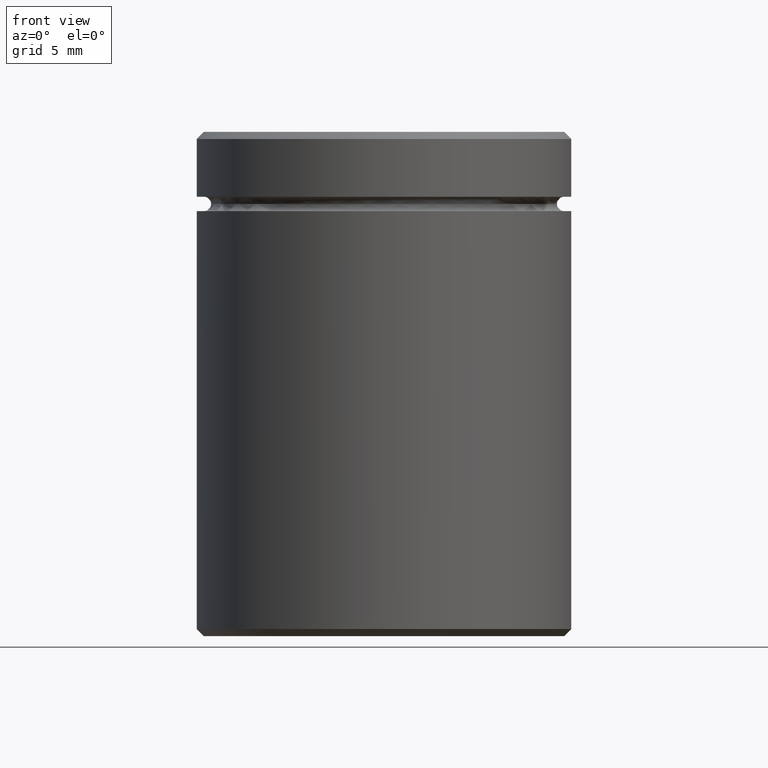
[diagram: clean part render]
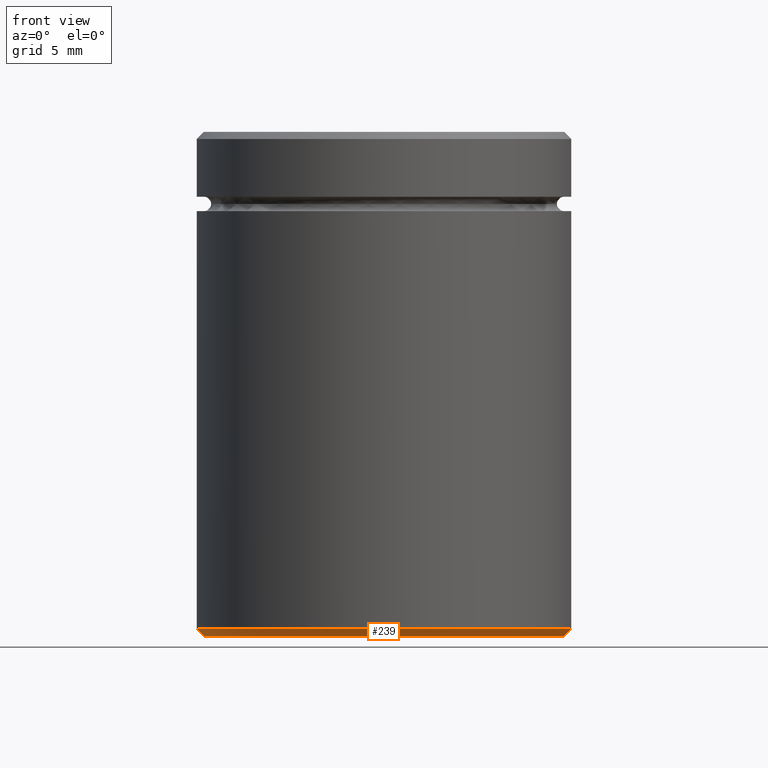
[diagram: same view with one face highlighted and labeled with its STEP entity id]
A machine part, front view. The second image highlights one B-rep face of the part: STEP entity #239.
In plain terms, the highlighted conical surface has half-angle 45 deg.
Its self-contained STEP definition (entity closure, byte-faithful):
#5 = CARTESIAN_POINT ( 'NONE',  ( -13.00000000000000000, 1.592040838891559095E-15, -34.49999999999999289 ) ) ;
#9 = EDGE_CURVE ( 'NONE', #316, #37, #460, .T. ) ;
#37 = VERTEX_POINT ( 'NONE', #545 ) ;
#53 = CARTESIAN_POINT ( 'NONE',  ( 0.000000000000000000, 0.000000000000000000, -34.49999999999999289 ) ) ;
#86 = AXIS2_PLACEMENT_3D ( 'NONE', #53, #182, #356 ) ;
#91 = CARTESIAN_POINT ( 'NONE',  ( 13.00000000000000000, 0.000000000000000000, -34.49999999999999289 ) ) ;
#96 = VERTEX_POINT ( 'NONE', #159 ) ;
#107 = DIRECTION ( 'NONE',  ( -0.7071067811865487940, 8.659560562354950115E-17, 0.7071067811865463515 ) ) ;
#159 = CARTESIAN_POINT ( 'NONE',  ( 13.00000000000000000, 0.000000000000000000, -34.49999999999999289 ) ) ;
#169 = VERTEX_POINT ( 'NONE', #5 ) ;
#175 = VECTOR ( 'NONE', #266, 1000.000000000000000 ) ;
#182 = DIRECTION ( 'NONE',  ( -0.000000000000000000, -0.000000000000000000, 1.000000000000000000 ) ) ;
#186 = LINE ( 'NONE', #240, #199 ) ;
#188 = DIRECTION ( 'NONE',  ( -0.000000000000000000, -0.000000000000000000, 1.000000000000000000 ) ) ;
#199 = VECTOR ( 'NONE', #107, 1000.000000000000000 ) ;
#217 = LINE ( 'NONE', #91, #175 ) ;
#220 = EDGE_CURVE ( 'NONE', #316, #96, #217, .T. ) ;
#229 = AXIS2_PLACEMENT_3D ( 'NONE', #376, #506, #283 ) ;
#239 = ADVANCED_FACE ( 'NONE', ( #451 ), #296, .T. ) ;
#240 = CARTESIAN_POINT ( 'NONE',  ( -13.00000000000000000, 1.592040838891559095E-15, -34.49999999999999289 ) ) ;
#259 = ORIENTED_EDGE ( 'NONE', *, *, #414, .F. ) ;
#266 = DIRECTION ( 'NONE',  ( 0.7071067811865487940, 0.000000000000000000, 0.7071067811865463515 ) ) ;
#281 = CARTESIAN_POINT ( 'NONE',  ( 12.49999999999999112, 0.000000000000000000, -35.00000000000000000 ) ) ;
#283 = DIRECTION ( 'NONE',  ( -1.000000000000000000, 0.000000000000000000, 0.000000000000000000 ) ) ;
#296 = CONICAL_SURFACE ( 'NONE', #86, 13.00000000000000000, 0.7853981633974500554 ) ;
#301 = CIRCLE ( 'NONE', #492, 13.00000000000000000 ) ;
#305 = ORIENTED_EDGE ( 'NONE', *, *, #9, .F. ) ;
#314 = ORIENTED_EDGE ( 'NONE', *, *, #220, .T. ) ;
#316 = VERTEX_POINT ( 'NONE', #281 ) ;
#319 = ORIENTED_EDGE ( 'NONE', *, *, #363, .F. ) ;
#356 = DIRECTION ( 'NONE',  ( 1.000000000000000000, 0.000000000000000000, 0.000000000000000000 ) ) ;
#363 = EDGE_CURVE ( 'NONE', #37, #169, #186, .T. ) ;
#376 = CARTESIAN_POINT ( 'NONE',  ( 0.000000000000000000, 0.000000000000000000, -35.00000000000000000 ) ) ;
#377 = DIRECTION ( 'NONE',  ( -1.000000000000000000, 0.000000000000000000, 0.000000000000000000 ) ) ;
#407 = EDGE_LOOP ( 'NONE', ( #319, #305, #314, #259 ) ) ;
#414 = EDGE_CURVE ( 'NONE', #169, #96, #301, .T. ) ;
#451 = FACE_OUTER_BOUND ( 'NONE', #407, .T. ) ;
#460 = CIRCLE ( 'NONE', #229, 12.49999999999999112 ) ;
#492 = AXIS2_PLACEMENT_3D ( 'NONE', #556, #188, #377 ) ;
#506 = DIRECTION ( 'NONE',  ( 0.000000000000000000, 0.000000000000000000, -1.000000000000000000 ) ) ;
#545 = CARTESIAN_POINT ( 'NONE',  ( -12.49999999999999112, 1.561424668912874519E-15, -35.00000000000000000 ) ) ;
#556 = CARTESIAN_POINT ( 'NONE',  ( 0.000000000000000000, 0.000000000000000000, -34.49999999999999289 ) ) ;